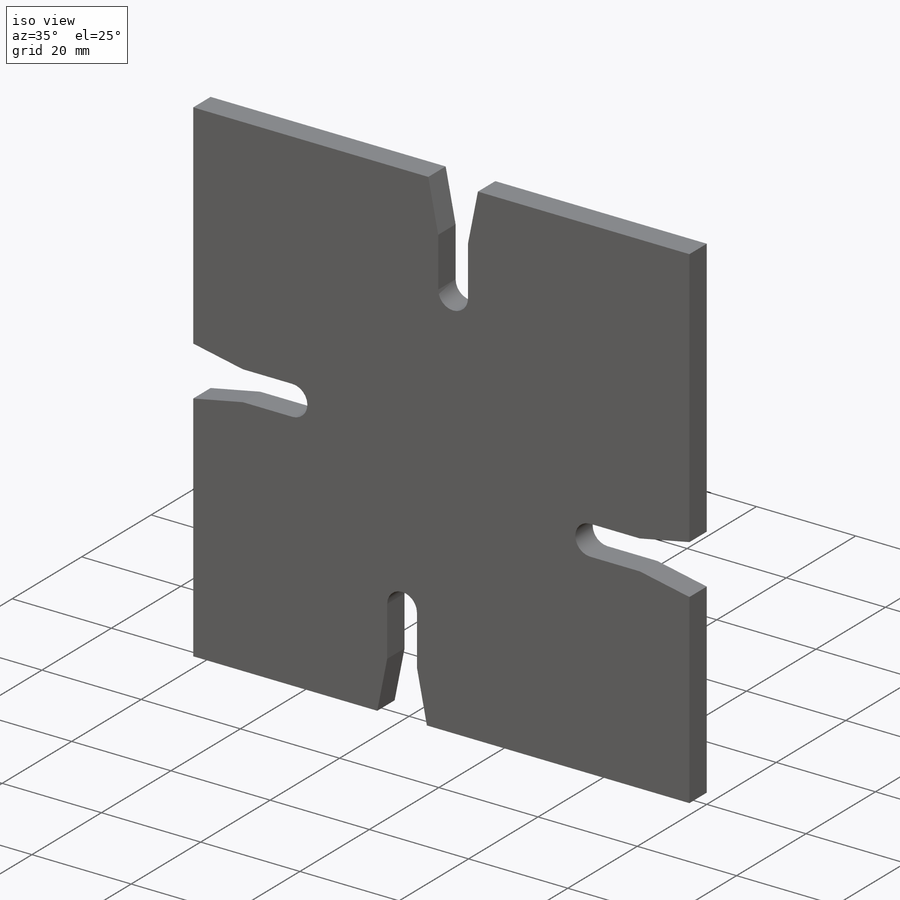
[diagram: iso view]
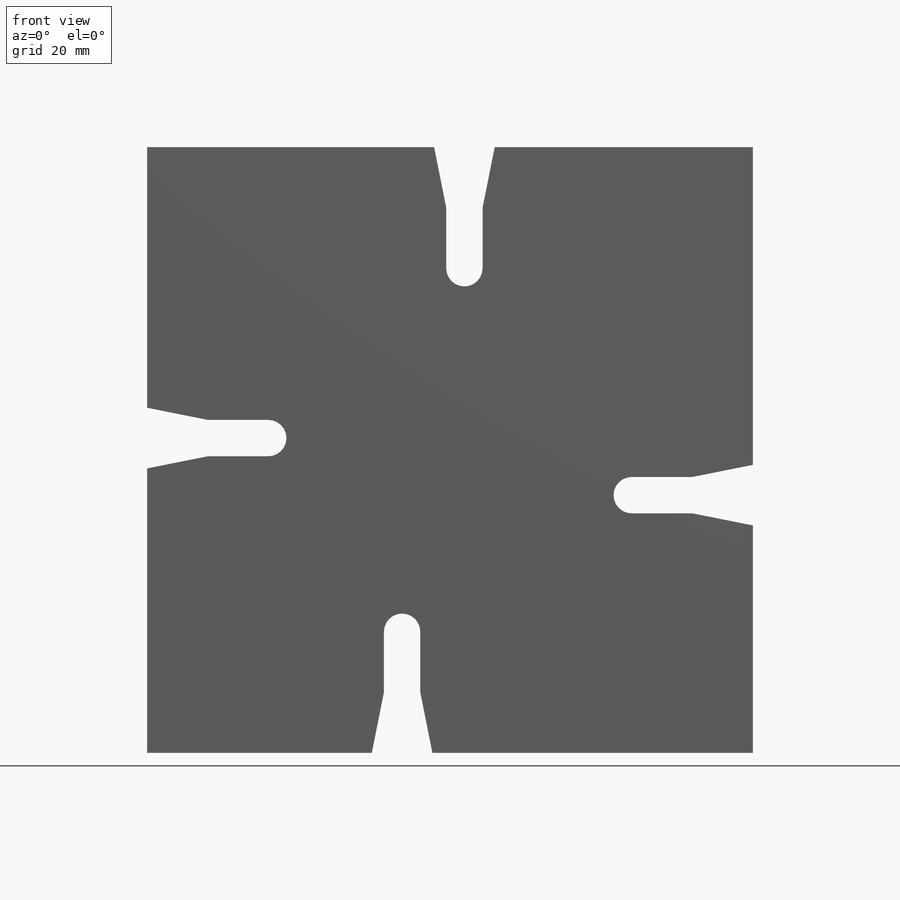
[diagram: front view]
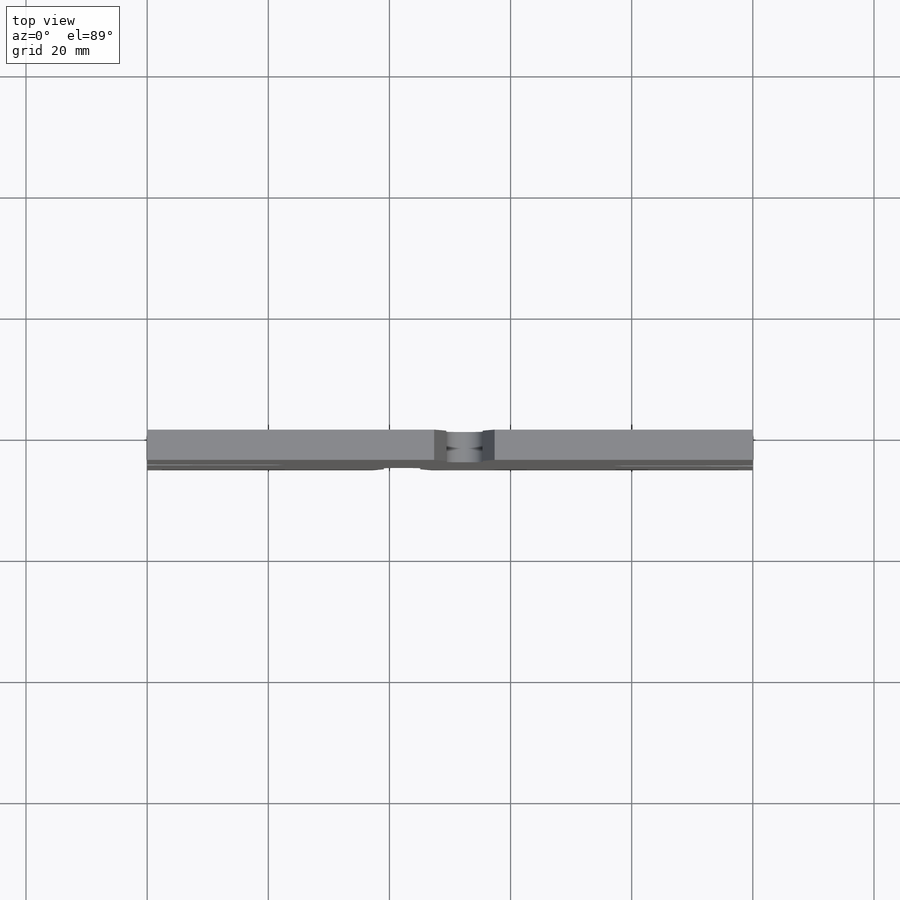
[diagram: top view]
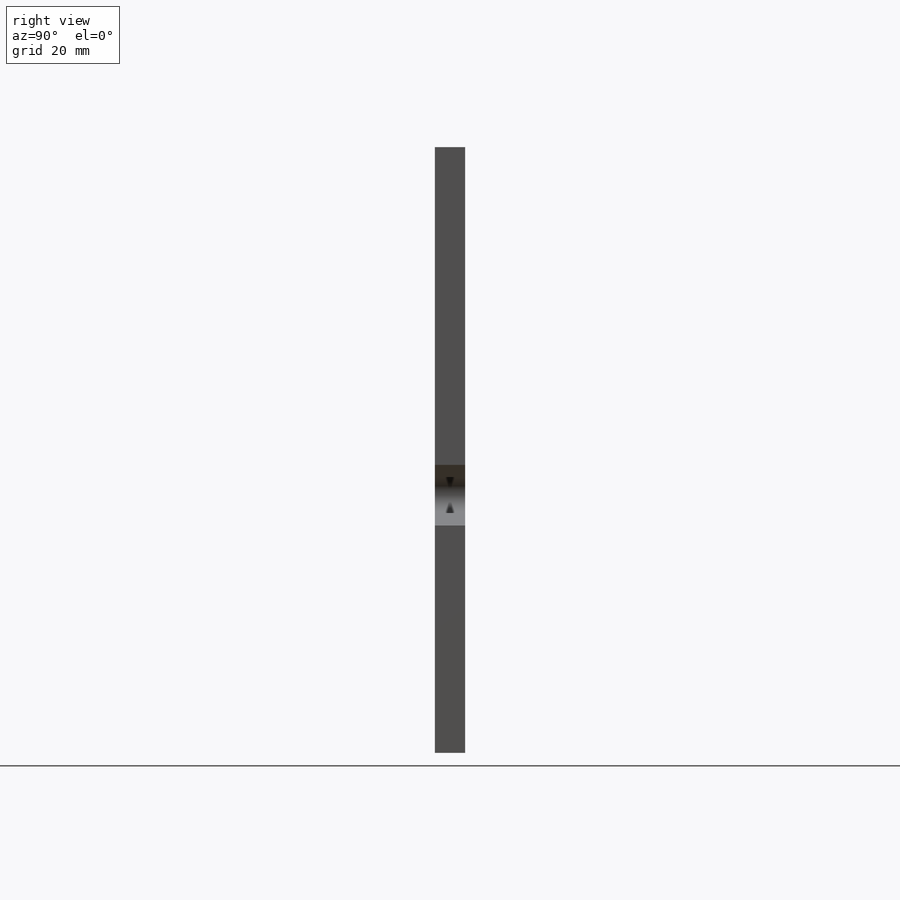
[diagram: right view]
SOLIDWORKS PART (.sldprt)
format: sldprt  version: not decoded by parser v0  size: 235,008 bytes
history: native  units: mm
features: sketch x5, extrude x4, cut_extrude x4, plane x3, material x1 (+10 scaffold rows collapsed)
feature tree (27):
  scaffold x10  (default folders/planes/origin — collapsed)
  material  "Material <nicht festgelegt>"
  plane  "Vorderansicht"
  plane  "Draufsicht"
  plane  "Seitenansicht"
  sketch  "Skizze1"  dims[D1=100.0mm D2=100.0mm]
  extrude  "Aufsatz-Linear austragen1"  Depth=5mm
  sketch  "Skizze2"  dims[D1=20.0mm D2=6.0mm D3=10.0mm D4=10.0mm D5=~20.549127mm]
  cut_extrude  "Schnitt-Linear austragen1"  [1 undecoded]
  sketch  "Skizze24"  dims[c1.D1=20.0mm c1.D2=6.0mm c1.D3=10.0mm c1.D4=10.0mm c1.D5=~20.549127mm c2.D1=20.0mm c2.D4=10.0mm c2.D2=6.0mm c2.D3=10.0mm]
  extrude  "Schnitt-Linear austragen14"  [1 undecoded]
  cut_extrude  "Blechschlitz6mm<2>"  [1 undecoded]
  sketch  "Skizze25"  dims[c1.D1=20.0mm c1.D2=6.0mm c1.D3=10.0mm c1.D4=10.0mm c1.D5=~20.549127mm c2.D1=20.0mm c2.D4=10.0mm c2.D2=6.0mm c2.D3=10.0mm]
  extrude  "Schnitt-Linear austragen15"  [1 undecoded]
  cut_extrude  "Blechschlitz6mm<3>"  [1 undecoded]
  sketch  "Skizze26"  dims[c1.D1=20.0mm c1.D2=6.0mm c1.D3=10.0mm c1.D4=10.0mm c1.D5=~20.549127mm c2.D1=20.0mm c2.D4=10.0mm c2.D2=6.0mm c2.D3=10.0mm]
  extrude  "Schnitt-Linear austragen16"  [1 undecoded]
  cut_extrude  "Blechschlitz6mm<4>"  [1 undecoded]
decode coverage: 6 of 13 modeling features carry decoded parameters
note: ~ marks probable driven/reference dimensions
note: 7 parameter values undecoded
summary: no parameter record found for 7 features
note: suppression state not decoded; provenance and decode notes live in map.json
